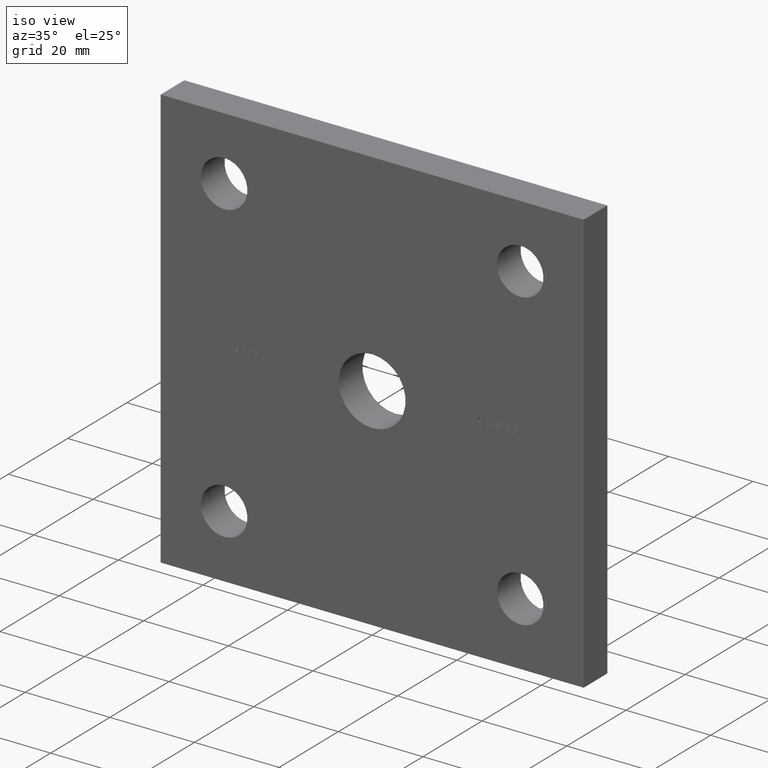
[diagram: clean part render]
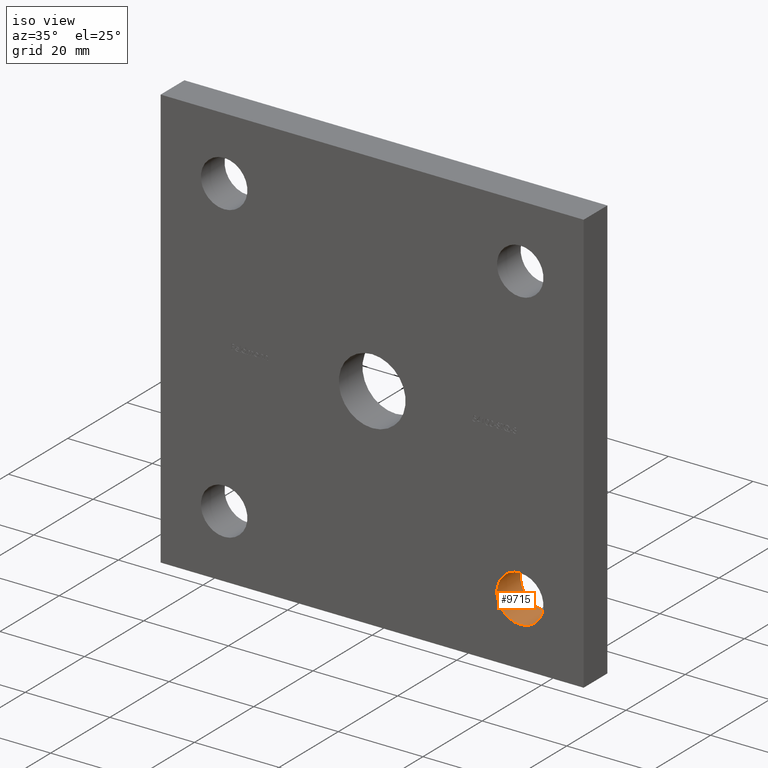
[diagram: same view with one face highlighted and labeled with its STEP entity id]
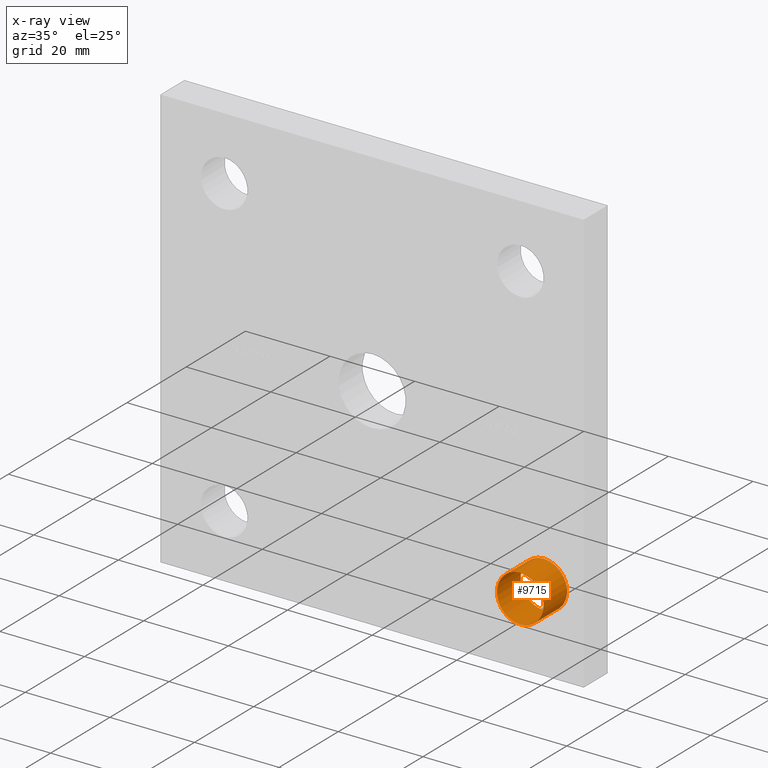
[diagram: x-ray of the same camera — body ghosted, the highlighted face saturated]
A machine part, iso view. The second image highlights one B-rep face of the part: STEP entity #9715.
The next image is the same camera in x-ray: the body ghosted, the highlighted face saturated — about 0% of this face is hidden behind the body in this view.
In plain terms, the highlighted cylindrical surface (bore or boss wall) has radius 5.5 mm, axis along (-0, 1, -0).
Its self-contained STEP definition (entity closure, byte-faithful):
#567 = AXIS2_PLACEMENT_3D ( 'NONE', #986, #7573, #9810 ) ;
#986 = CARTESIAN_POINT ( 'NONE',  ( 35.00000000000000000, 0.000000000000000000, -35.00000000000000000 ) ) ;
#1654 = FACE_OUTER_BOUND ( 'NONE', #3522, .T. ) ;
#2003 = CIRCLE ( 'NONE', #2492, 5.499999999999994671 ) ;
#2140 = DIRECTION ( 'NONE',  ( 0.000000000000000000, 0.000000000000000000, 1.000000000000000000 ) ) ;
#2492 = AXIS2_PLACEMENT_3D ( 'NONE', #6050, #9250, #12652 ) ;
#3522 = EDGE_LOOP ( 'NONE', ( #13902 ) ) ;
#5294 = EDGE_LOOP ( 'NONE', ( #12338 ) ) ;
#5921 = EDGE_CURVE ( 'NONE', #11919, #11919, #2003, .T. ) ;
#6050 = CARTESIAN_POINT ( 'NONE',  ( 35.00000000000000000, 8.000000000000000000, -35.00000000000000000 ) ) ;
#6550 = CARTESIAN_POINT ( 'NONE',  ( 35.00000000000000000, 0.000000000000000000, -35.00000000000000000 ) ) ;
#7573 = DIRECTION ( 'NONE',  ( -0.000000000000000000, 1.000000000000000000, -0.000000000000000000 ) ) ;
#8714 = CYLINDRICAL_SURFACE ( 'NONE', #567, 5.499999999999994671 ) ;
#8734 = DIRECTION ( 'NONE',  ( 0.000000000000000000, 1.000000000000000000, 0.000000000000000000 ) ) ;
#9250 = DIRECTION ( 'NONE',  ( 0.000000000000000000, 1.000000000000000000, 0.000000000000000000 ) ) ;
#9715 = ADVANCED_FACE ( 'NONE', ( #1654, #11656 ), #8714, .F. ) ;
#9810 = DIRECTION ( 'NONE',  ( 0.000000000000000000, 0.000000000000000000, 1.000000000000000000 ) ) ;
#11656 = FACE_OUTER_BOUND ( 'NONE', #5294, .T. ) ;
#11919 = VERTEX_POINT ( 'NONE', #12371 ) ;
#12287 = CIRCLE ( 'NONE', #13587, 5.499999999999994671 ) ;
#12338 = ORIENTED_EDGE ( 'NONE', *, *, #5921, .T. ) ;
#12371 = CARTESIAN_POINT ( 'NONE',  ( 35.00000000000000000, 8.000000000000000000, -29.50000000000000711 ) ) ;
#12409 = EDGE_CURVE ( 'NONE', #12774, #12774, #12287, .T. ) ;
#12652 = DIRECTION ( 'NONE',  ( 0.000000000000000000, 0.000000000000000000, 1.000000000000000000 ) ) ;
#12774 = VERTEX_POINT ( 'NONE', #13691 ) ;
#13587 = AXIS2_PLACEMENT_3D ( 'NONE', #6550, #8734, #2140 ) ;
#13691 = CARTESIAN_POINT ( 'NONE',  ( 35.00000000000000000, 0.000000000000000000, -29.50000000000000711 ) ) ;
#13902 = ORIENTED_EDGE ( 'NONE', *, *, #12409, .F. ) ;